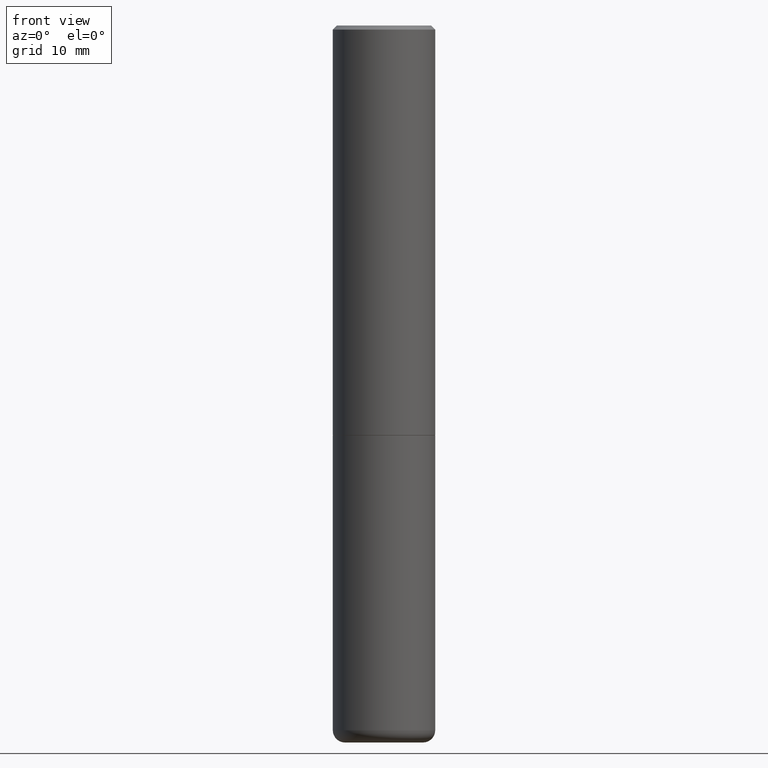
[diagram: clean part render]
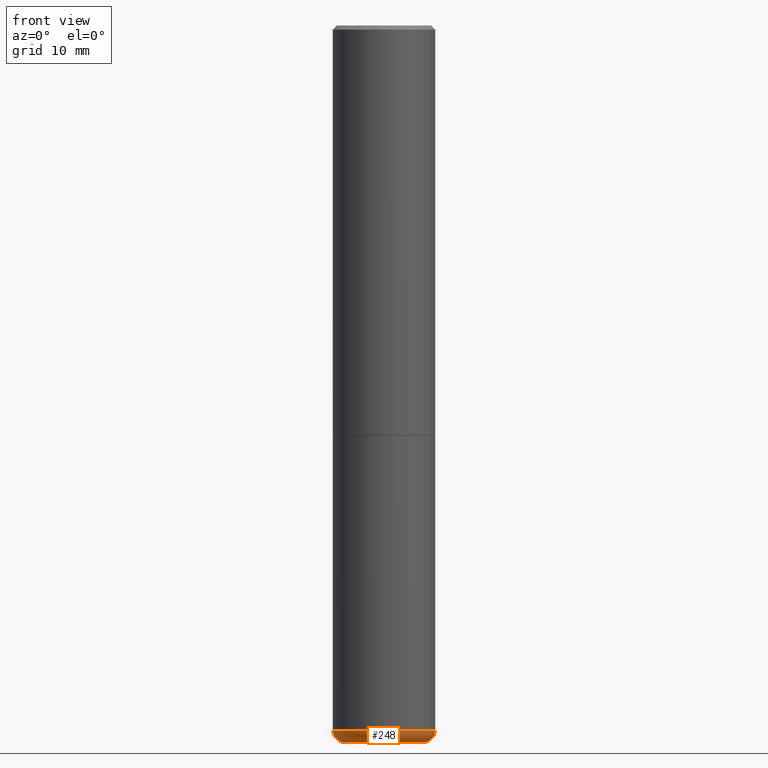
[diagram: same view with one face highlighted and labeled with its STEP entity id]
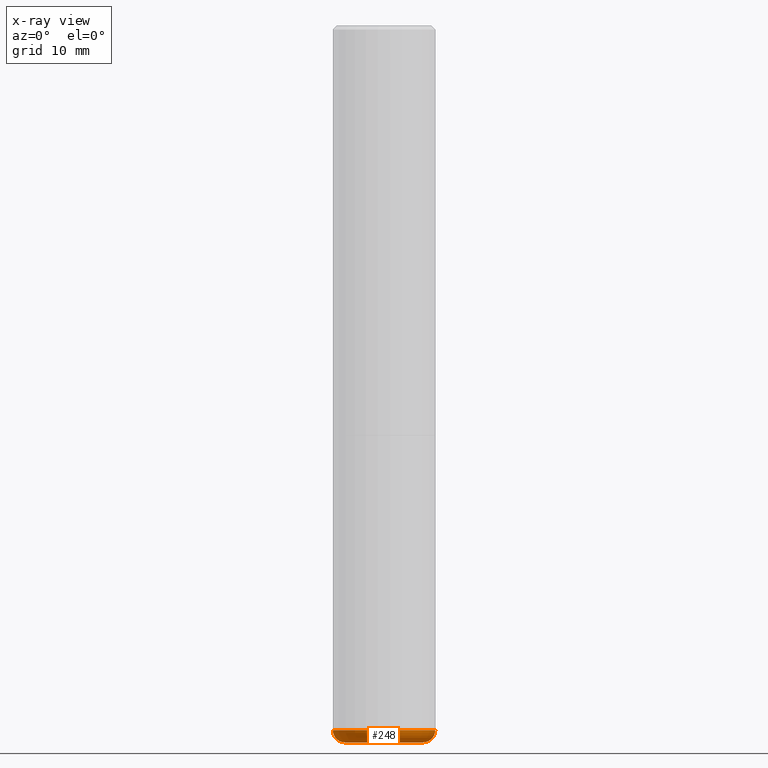
[diagram: x-ray of the same camera — body ghosted, the highlighted face saturated]
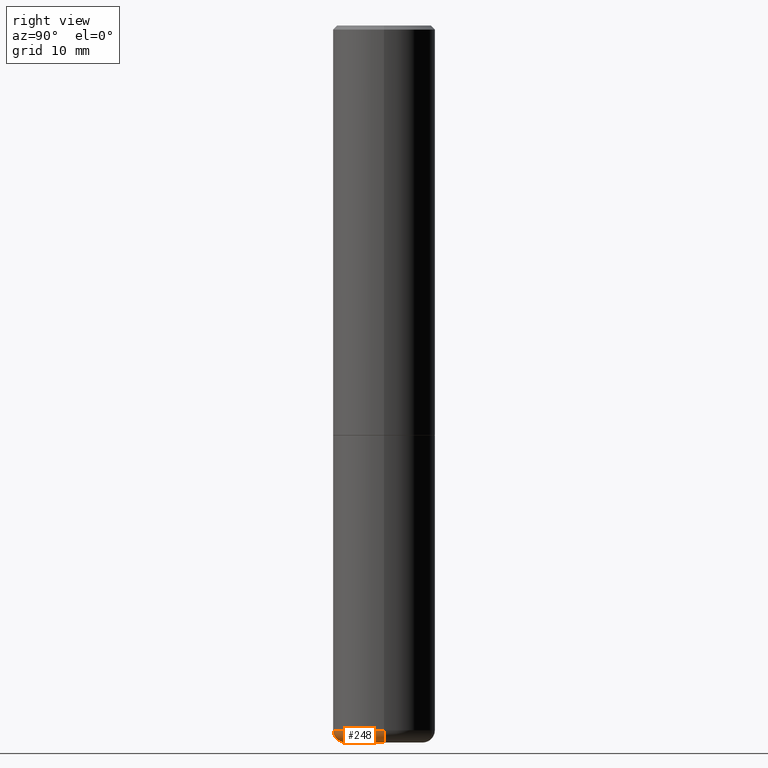
[diagram: same view with one face highlighted and labeled with its STEP entity id]
A machine part, front view. The second image highlights one B-rep face of the part: STEP entity #248.
The next image is the same camera in x-ray: the body ghosted, the highlighted face saturated — about 0% of this face is hidden behind the body in this view.
A second angle (right view) of the same face is appended — the face is thin or edge-on in the first view.
In plain terms, the highlighted toroidal blend (fillet) surface has major radius 4.826 mm and minor (blend) radius 1.524 mm.
Its self-contained STEP definition (entity closure, byte-faithful):
#4 = VERTEX_POINT ( 'NONE', #63 ) ;
#21 = EDGE_LOOP ( 'NONE', ( #380, #273, #327, #411 ) ) ;
#30 = DIRECTION ( 'NONE',  ( -1.000000000000000000, 7.105427357600997914E-15, 0.000000000000000000 ) ) ;
#35 = CIRCLE ( 'NONE', #154, 0.05999999999999994227 ) ;
#48 = CARTESIAN_POINT ( 'NONE',  ( -0.2499999999999999722, -1.023433896622016898E-14, -3.439999999999999947 ) ) ;
#50 = CARTESIAN_POINT ( 'NONE',  ( 8.559140821647976968E-29, -1.222018468595100934E-14, -3.500000000000000000 ) ) ;
#61 = CIRCLE ( 'NONE', #158, 0.05999999999999994227 ) ;
#63 = CARTESIAN_POINT ( 'NONE',  ( 0.1899999999999999745, -1.354694759471140096E-14, -3.500000000000000000 ) ) ;
#66 = VERTEX_POINT ( 'NONE', #48 ) ;
#74 = DIRECTION ( 'NONE',  ( -2.445468806185136597E-29, 3.491481338843145583E-15, 1.000000000000000000 ) ) ;
#88 = TOROIDAL_SURFACE ( 'NONE', #260, 0.1899999999999999745, 0.05999999999999995615 ) ;
#139 = CARTESIAN_POINT ( 'NONE',  ( 0.2499999999999999722, -1.375643647504198770E-14, -3.439999999999999947 ) ) ;
#150 = DIRECTION ( 'NONE',  ( -6.982962677686266711E-15, -1.000000000000000000, 3.491481338843145583E-15 ) ) ;
#154 = AXIS2_PLACEMENT_3D ( 'NONE', #198, #320, #30 ) ;
#158 = AXIS2_PLACEMENT_3D ( 'NONE', #272, #150, #300 ) ;
#160 = CARTESIAN_POINT ( 'NONE',  ( -0.1899999999999999745, -1.055224622711349575E-14, -3.500000000000000000 ) ) ;
#168 = EDGE_CURVE ( 'NONE', #4, #417, #61, .T. ) ;
#177 = CIRCLE ( 'NONE', #285, 0.2500000000000000000 ) ;
#180 = EDGE_CURVE ( 'NONE', #229, #4, #309, .T. ) ;
#186 = DIRECTION ( 'NONE',  ( 1.000000000000000000, -6.982962677686273021E-15, 0.000000000000000000 ) ) ;
#195 = EDGE_CURVE ( 'NONE', #66, #417, #177, .T. ) ;
#198 = CARTESIAN_POINT ( 'NONE',  ( -0.1899999999999999745, -1.066066460767623105E-14, -3.439999999999999947 ) ) ;
#206 = DIRECTION ( 'NONE',  ( 1.000000000000000000, -6.982962677686265133E-15, 4.883557194083112340E-29 ) ) ;
#229 = VERTEX_POINT ( 'NONE', #160 ) ;
#236 = DIRECTION ( 'NONE',  ( -2.445468806185136597E-29, 3.491481338843145583E-15, 1.000000000000000000 ) ) ;
#241 = CARTESIAN_POINT ( 'NONE',  ( 8.412412693276869938E-29, -1.201069580562042103E-14, -3.439999999999999947 ) ) ;
#248 = ADVANCED_FACE ( 'NONE', ( #358 ), #88, .T. ) ;
#260 = AXIS2_PLACEMENT_3D ( 'NONE', #418, #74, #206 ) ;
#272 = CARTESIAN_POINT ( 'NONE',  ( 0.1899999999999999745, -1.333745871438081265E-14, -3.439999999999999947 ) ) ;
#273 = ORIENTED_EDGE ( 'NONE', *, *, #180, .T. ) ;
#275 = DIRECTION ( 'NONE',  ( 1.000000000000000000, -6.982962677686270655E-15, 0.000000000000000000 ) ) ;
#285 = AXIS2_PLACEMENT_3D ( 'NONE', #241, #318, #275 ) ;
#300 = DIRECTION ( 'NONE',  ( 1.000000000000000000, -6.982962677686274599E-15, 0.000000000000000000 ) ) ;
#309 = CIRCLE ( 'NONE', #409, 0.1899999999999999745 ) ;
#318 = DIRECTION ( 'NONE',  ( -2.445468806185136597E-29, 3.491481338843145583E-15, 1.000000000000000000 ) ) ;
#320 = DIRECTION ( 'NONE',  ( 7.105427357601001859E-15, 1.000000000000000000, -3.491481338843145583E-15 ) ) ;
#321 = EDGE_CURVE ( 'NONE', #229, #66, #35, .T. ) ;
#327 = ORIENTED_EDGE ( 'NONE', *, *, #168, .T. ) ;
#358 = FACE_OUTER_BOUND ( 'NONE', #21, .T. ) ;
#380 = ORIENTED_EDGE ( 'NONE', *, *, #321, .F. ) ;
#409 = AXIS2_PLACEMENT_3D ( 'NONE', #50, #236, #186 ) ;
#411 = ORIENTED_EDGE ( 'NONE', *, *, #195, .F. ) ;
#417 = VERTEX_POINT ( 'NONE', #139 ) ;
#418 = CARTESIAN_POINT ( 'NONE',  ( 8.412412693276869938E-29, -1.201069580562042103E-14, -3.439999999999999947 ) ) ;